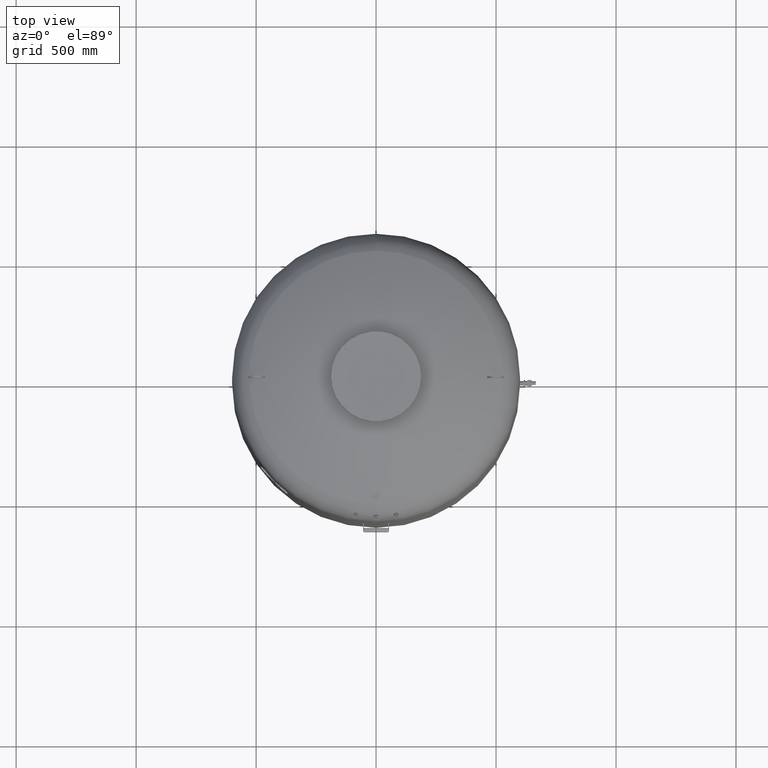
[diagram: clean part render]
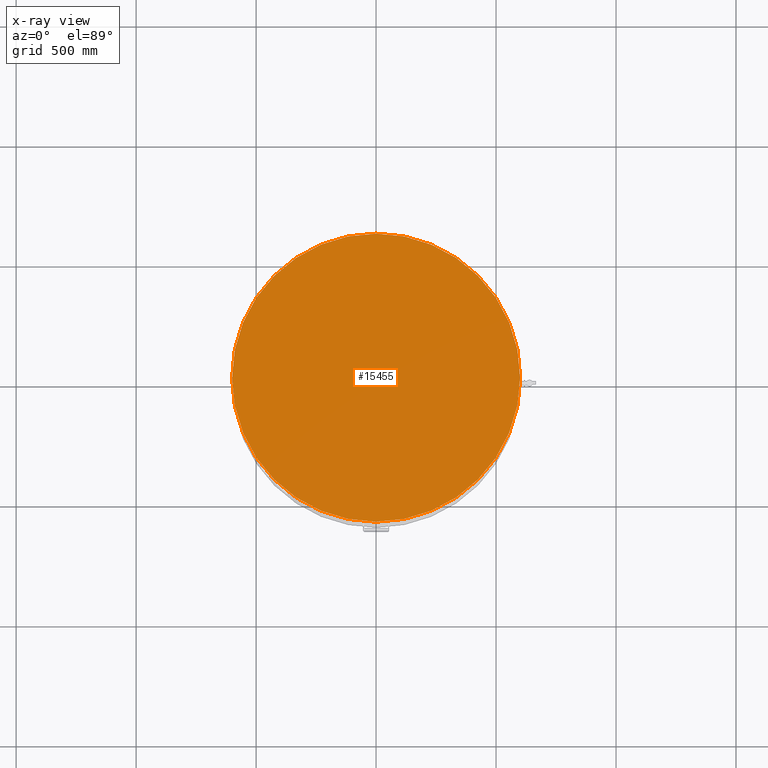
[diagram: x-ray — body ghosted, one internal face saturated and labeled with its STEP entity id]
A machine part, top view, then the same camera in x-ray: the body is ghosted and one INTERNAL B-rep face — a face not visible from any outside direction — is saturated and labeled: STEP entity #15455.
In plain terms, the highlighted planar face has unit normal (0, 0, 1).
Its self-contained STEP definition (entity closure, byte-faithful):
#15245=CARTESIAN_POINT('',(600.0,0.0,2145.0));
#15246=VERTEX_POINT('',#15245);
#15255=CARTESIAN_POINT('',(-600.000000000000110,-7.347638E-014,2145.0));
#15256=VERTEX_POINT('',#15255);
#15257=CARTESIAN_POINT('',(1.668796E-014,0.0,2145.0));
#15258=DIRECTION('',(0.0,0.0,1.0));
#15259=DIRECTION('',(1.0,0.0,0.0));
#15260=AXIS2_PLACEMENT_3D('',#15257,#15258,#15259);
#15261=CIRCLE('',#15260,600.0);
#15262=EDGE_CURVE('',#15256,#15246,#15261,.T.);
#15436=CARTESIAN_POINT('',(1.668796E-014,0.0,2145.0));
#15437=DIRECTION('',(0.0,0.0,1.0));
#15438=DIRECTION('',(1.0,0.0,0.0));
#15439=AXIS2_PLACEMENT_3D('',#15436,#15437,#15438);
#15440=CIRCLE('',#15439,600.0);
#15441=EDGE_CURVE('',#15246,#15256,#15440,.T.);
#15446=CARTESIAN_POINT('',(300.0,0.0,2145.0));
#15447=DIRECTION('',(0.0,0.0,1.0));
#15448=DIRECTION('',(1.0,0.0,0.0));
#15449=AXIS2_PLACEMENT_3D('',#15446,#15447,#15448);
#15450=PLANE('',#15449);
#15451=ORIENTED_EDGE('',*,*,#15441,.T.);
#15452=ORIENTED_EDGE('',*,*,#15262,.T.);
#15453=EDGE_LOOP('',(#15451,#15452));
#15454=FACE_OUTER_BOUND('',#15453,.T.);
#15455=ADVANCED_FACE('',(#15454),#15450,.T.);